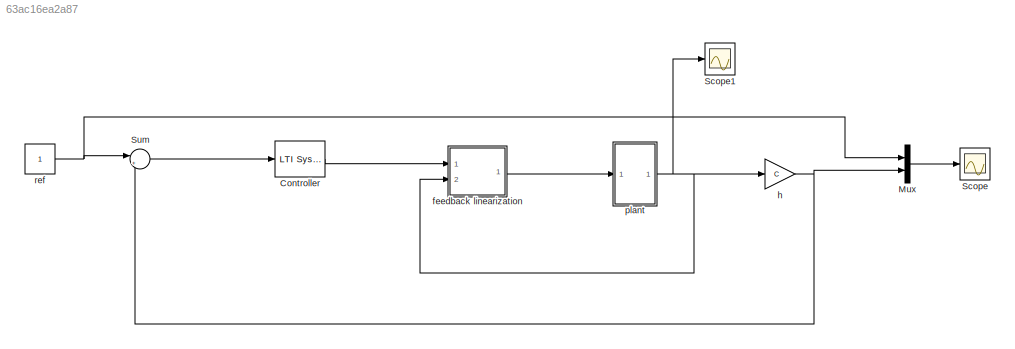
MODEL slx_63ac16ea2a87
KIND model
CONFIG AbsTol = auto
CONFIG EnableMultiTasking = off
CONFIG FixedStep = auto
CONFIG MaxStep = Tstep
CONFIG MinStep = auto
CONFIG RelTol = 1e-3
CONFIG SampleTimeConstraint = Unconstrained
CONFIG Solver = VariableStepAuto
CONFIG SolverName = VariableStepAuto
CONFIG StartTime = 0.0
CONFIG StopTime = Tfin
BLOCK [Reference] Controller  REF=cstblocks/LTI System
  Ports = [1, 1]
  SourceBlock = cstblocks/LTI System
  SourceProductBaseCode = CT
  SourceProductName = Control System Toolbox
  SourceType = LTI Block
BLOCK [Mux] Mux
  DisplayOption = bar
  Inputs = 2
  Ports = [2, 1]
BLOCK [Scope] Scope
  Floating = off
  NumInputPorts = 1
  Ports = [1]
  ScopeSpecificationString = Simulink.scopes.TimeScopeBlockCfg('CurrentConfiguration', extmgr.ConfigurationSet(extmgr.Configuration('Core','General UI',true),extmgr.Configuration('Core','Source UI',true),extmgr.Configuration('Sources','WiredSimulink',true),extmgr.Configuration('Visuals','Time Domain',true,'SerializedDisplays',{struct('MinYLimReal','-0.14248','MaxYLimReal','1.28236','YLabelReal','','MinYLimMag','0.00000','MaxY...<+1327ch>
BLOCK [Scope] Scope1
  Floating = off
  NumInputPorts = 1
  Ports = [1]
  ScopeSpecificationString = Simulink.scopes.TimeScopeBlockCfg('CurrentConfiguration', extmgr.ConfigurationSet(extmgr.Configuration('Core','General UI',true),extmgr.Configuration('Core','Source UI',true),extmgr.Configuration('Sources','WiredSimulink',true,'DataLoggingVariableName','ScopeData1'),extmgr.Configuration('Visuals','Time Domain',true,'SerializedDisplays',{struct('MinYLimReal','-4.02685','MaxYLimReal','22.2054','YLab...<+1386ch>
BLOCK [Sum] Sum
  IconShape = round
  InputSameDT = off
  Inputs = |+-
  OutDataTypeStr = Inherit: Inherit via internal rule
  Ports = [2, 1]
  SaturateOnIntegerOverflow = off
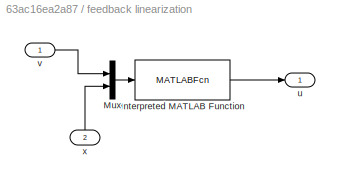
BLOCK [SubSystem] feedback linearization
  Ports = [2, 1]
  RequestExecContextInheritance = off
BLOCK [MATLABFcn] feedback linearization/Interpreted MATLAB Function
  MATLABFcn = u_chua(u)
  Ports = [1, 1]
BLOCK [Mux] feedback linearization/Mux
  DisplayOption = bar
  Inputs = 2
  Ports = [2, 1]
BLOCK [Outport] feedback linearization/u
  IconDisplay = Port number
  VectorParamsAs1DForOutWhenUnconnected = off
BLOCK [Inport] feedback linearization/v
  IconDisplay = Port number
BLOCK [Inport] feedback linearization/x
  IconDisplay = Port number
  Port = 2
BLOCK [Gain] h
  Gain = C
  Multiplication = Matrix(K*u)
  OutDataTypeStr = Inherit: Inherit via internal rule
  ParamDataTypeStr = Inherit: Inherit via internal rule
  SaturateOnIntegerOverflow = off
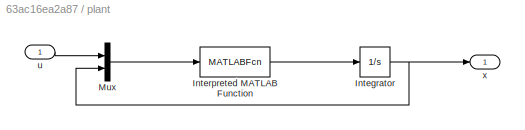
BLOCK [SubSystem] plant
  Ports = [1, 1]
  RequestExecContextInheritance = off
BLOCK [Integrator] plant/Integrator
  InitialCondition = x0
  Ports = [1, 1]
BLOCK [MATLABFcn] plant/Interpreted MATLAB Function
  MATLABFcn = chua_fg(u)
  Ports = [1, 1]
BLOCK [Mux] plant/Mux
  DisplayOption = bar
  Inputs = 2
  Ports = [2, 1]
BLOCK [Inport] plant/u
  IconDisplay = Port number
BLOCK [Outport] plant/x
  IconDisplay = Port number
BLOCK [Constant] ref
LINE Controller:1 -> feedback linearization:1
LINE Mux:1 -> Scope:1
LINE Sum:1 -> Controller:1
LINE feedback linearization/Interpreted MATLAB Function:1 -> feedback linearization/u:1
LINE feedback linearization/Mux:1 -> feedback linearization/Interpreted MATLAB Function:1
LINE feedback linearization/v:1 -> feedback linearization/Mux:1
LINE feedback linearization/x:1 -> feedback linearization/Mux:2
LINE feedback linearization:1 -> plant:1
NET h:1 -> Mux:2, Sum:2
NET plant/Integrator:1 -> plant/Mux:2, plant/x:1
LINE plant/Interpreted MATLAB Function:1 -> plant/Integrator:1
LINE plant/Mux:1 -> plant/Interpreted MATLAB Function:1
LINE plant/u:1 -> plant/Mux:1
NET plant:1 -> Scope1:1, feedback linearization:2, h:1
NET ref:1 -> Mux:1, Sum:1
note: NET lines group one-source signal fan-out (src -> all destinations, sorted); 1:1 wires keep LINE
